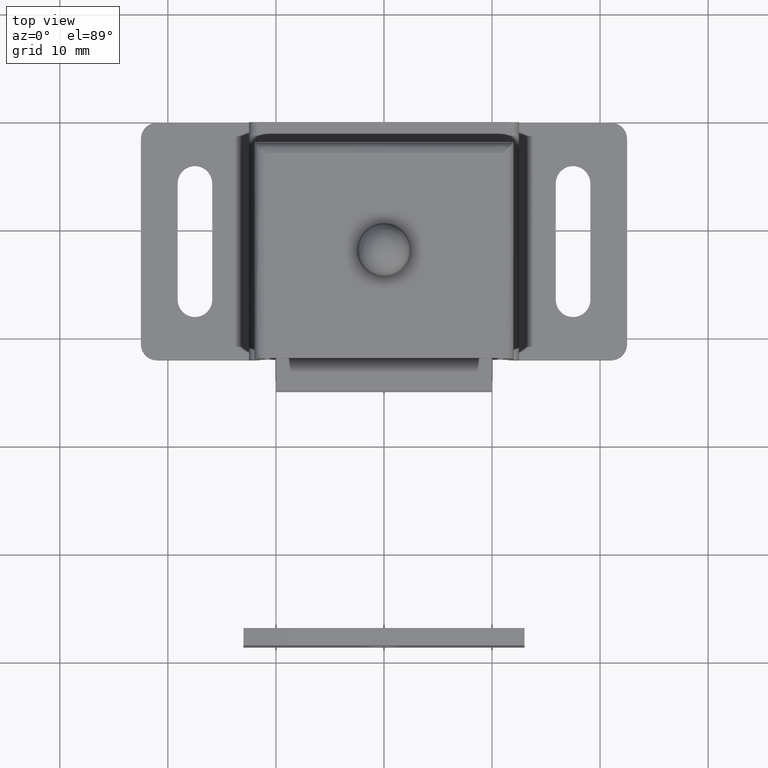
[diagram: clean part render]
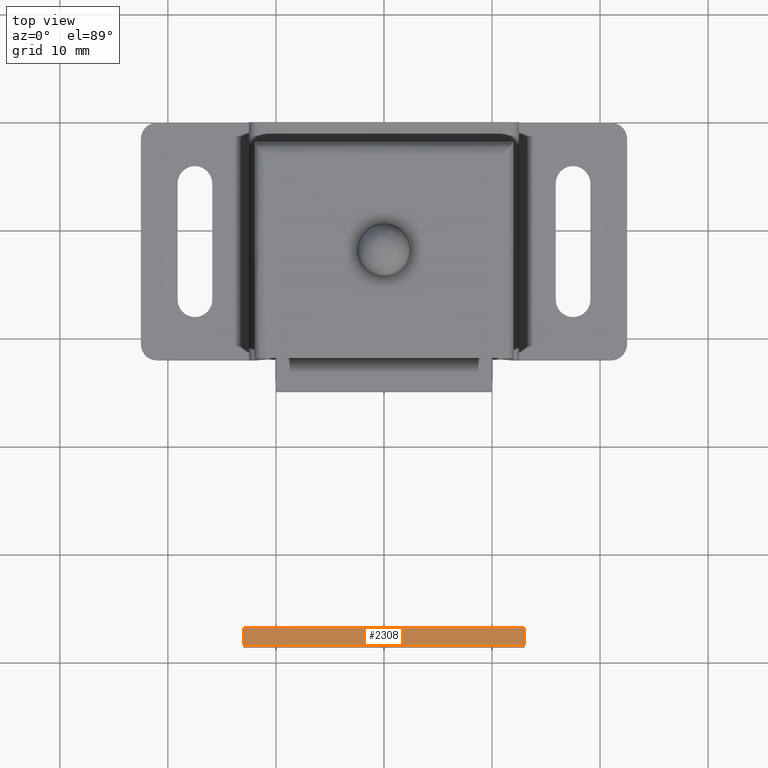
[diagram: same view with one face highlighted and labeled with its STEP entity id]
A machine part, top view. The second image highlights one B-rep face of the part: STEP entity #2308.
In plain terms, the highlighted face is a freeform B-spline surface patch.
Its self-contained STEP definition (entity closure, byte-faithful):
#2184=CARTESIAN_POINT('',(-13.0,-48.600005999999802,13.199996999999939));
#2185=VERTEX_POINT('',#2184);
#2186=CARTESIAN_POINT('',(13.0,-48.600005999999802,13.199996999999939));
#2187=VERTEX_POINT('',#2186);
#2188=CARTESIAN_POINT('',(-13.0,-48.600005999999802,13.199996999999939));
#2189=CARTESIAN_POINT('',(13.0,-48.600005999999802,13.199996999999939));
#2190=QUASI_UNIFORM_CURVE('',1,(#2188,#2189),.UNSPECIFIED.,.F.,.U.);
#2191=EDGE_CURVE('',#2185,#2187,#2190,.T.);
#2227=CARTESIAN_POINT('',(-13.0,-47.0,13.199996999999939));
#2228=VERTEX_POINT('',#2227);
#2229=CARTESIAN_POINT('',(-13.0,-47.0,13.199996999999939));
#2230=CARTESIAN_POINT('',(-13.0,-48.600005999999802,13.199996999999939));
#2231=QUASI_UNIFORM_CURVE('',1,(#2229,#2230),.UNSPECIFIED.,.F.,.U.);
#2232=EDGE_CURVE('',#2228,#2185,#2231,.T.);
#2278=CARTESIAN_POINT('',(13.0,-47.0,13.199996999999939));
#2279=VERTEX_POINT('',#2278);
#2285=CARTESIAN_POINT('',(13.0,-47.0,13.199996999999939));
#2286=CARTESIAN_POINT('',(13.0,-48.600005999999802,13.199996999999939));
#2287=QUASI_UNIFORM_CURVE('',1,(#2285,#2286),.UNSPECIFIED.,.F.,.U.);
#2288=EDGE_CURVE('',#2279,#2187,#2287,.T.);
#2293=CARTESIAN_POINT('',(14.298699949606959,-48.679926296598673,13.199996999999939));
#2294=CARTESIAN_POINT('',(-14.298700646981301,-48.679926296598673,13.199996999999939));
#2295=CARTESIAN_POINT('',(14.298699949606959,-46.920079660485627,13.199996999999939));
#2296=CARTESIAN_POINT('',(-14.298700646981301,-46.920079660485627,13.199996999999939));
#2297=B_SPLINE_SURFACE_WITH_KNOTS('',1,1,((#2293,#2295),(#2294,#2296)),.UNSPECIFIED.,.F.,.F.,.U.,(2,2),(2,2),(0.0,28.597400596588258),(0.041708334948495,0.958291687403247),.UNSPECIFIED.);
#2298=ORIENTED_EDGE('',*,*,#2191,.T.);
#2299=ORIENTED_EDGE('',*,*,#2288,.F.);
#2300=CARTESIAN_POINT('',(-13.0,-47.0,13.199996999999939));
#2301=CARTESIAN_POINT('',(13.0,-47.0,13.199996999999939));
#2302=QUASI_UNIFORM_CURVE('',1,(#2300,#2301),.UNSPECIFIED.,.F.,.U.);
#2303=EDGE_CURVE('',#2228,#2279,#2302,.T.);
#2304=ORIENTED_EDGE('',*,*,#2303,.F.);
#2305=ORIENTED_EDGE('',*,*,#2232,.T.);
#2306=EDGE_LOOP('',(#2298,#2299,#2304,#2305));
#2307=FACE_OUTER_BOUND('',#2306,.T.);
#2308=ADVANCED_FACE('',(#2307),#2297,.F.);